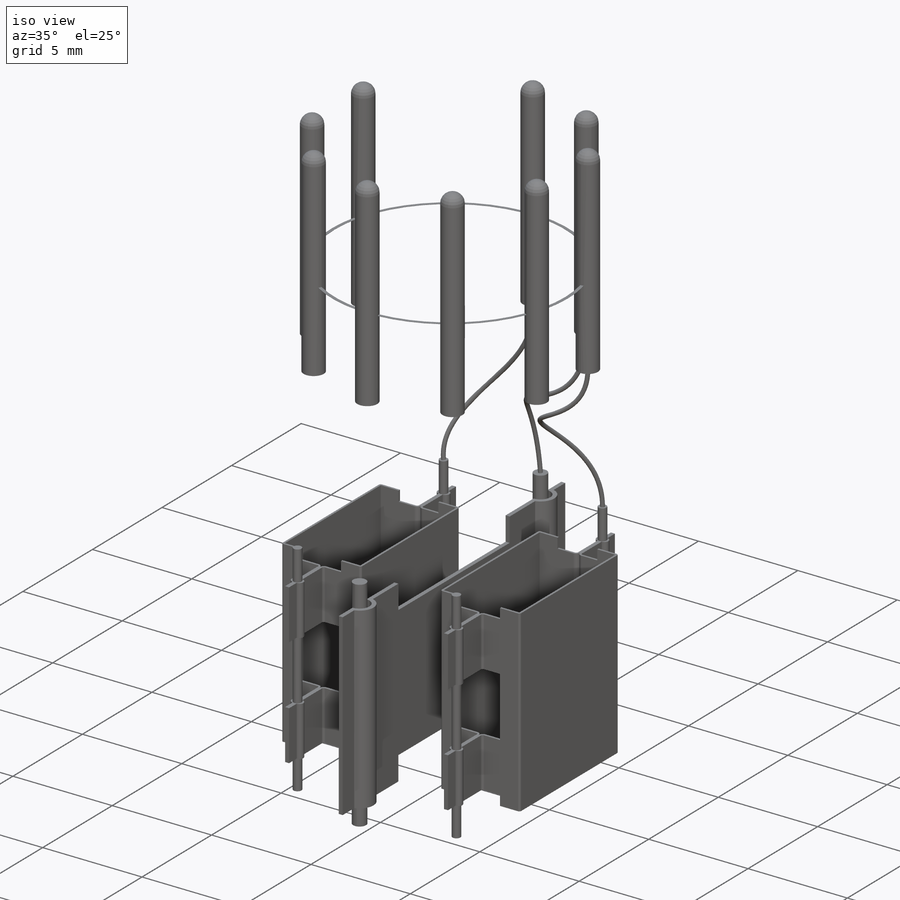
[diagram: iso view]
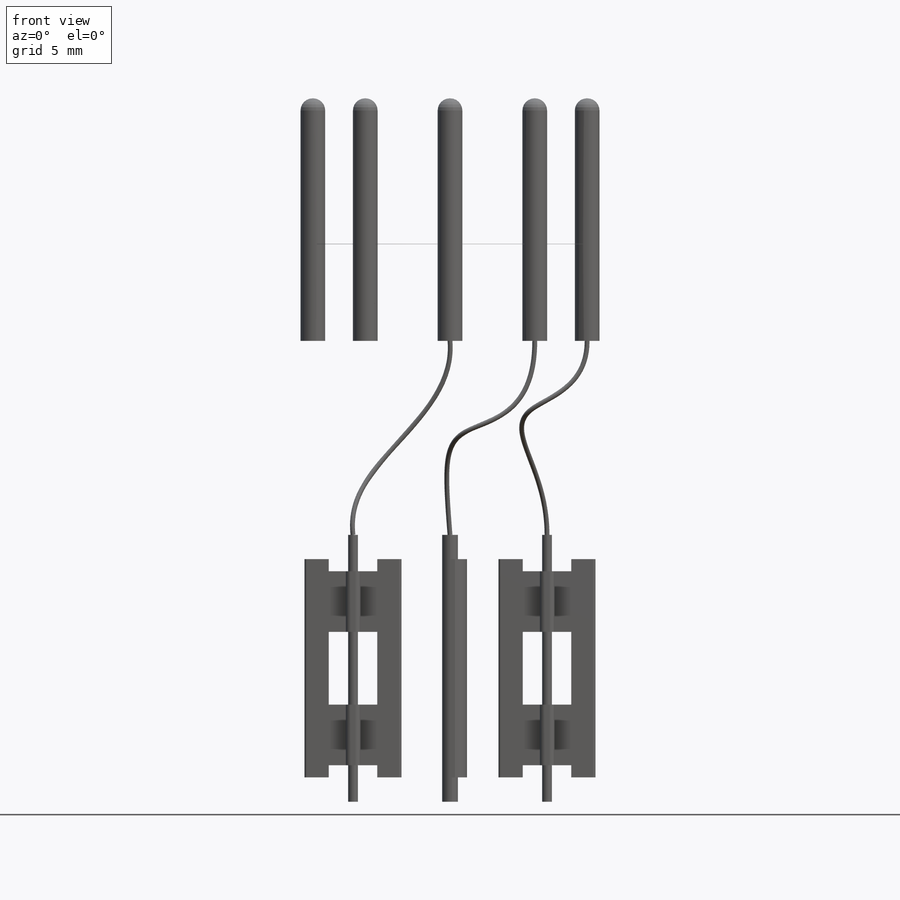
[diagram: front view]
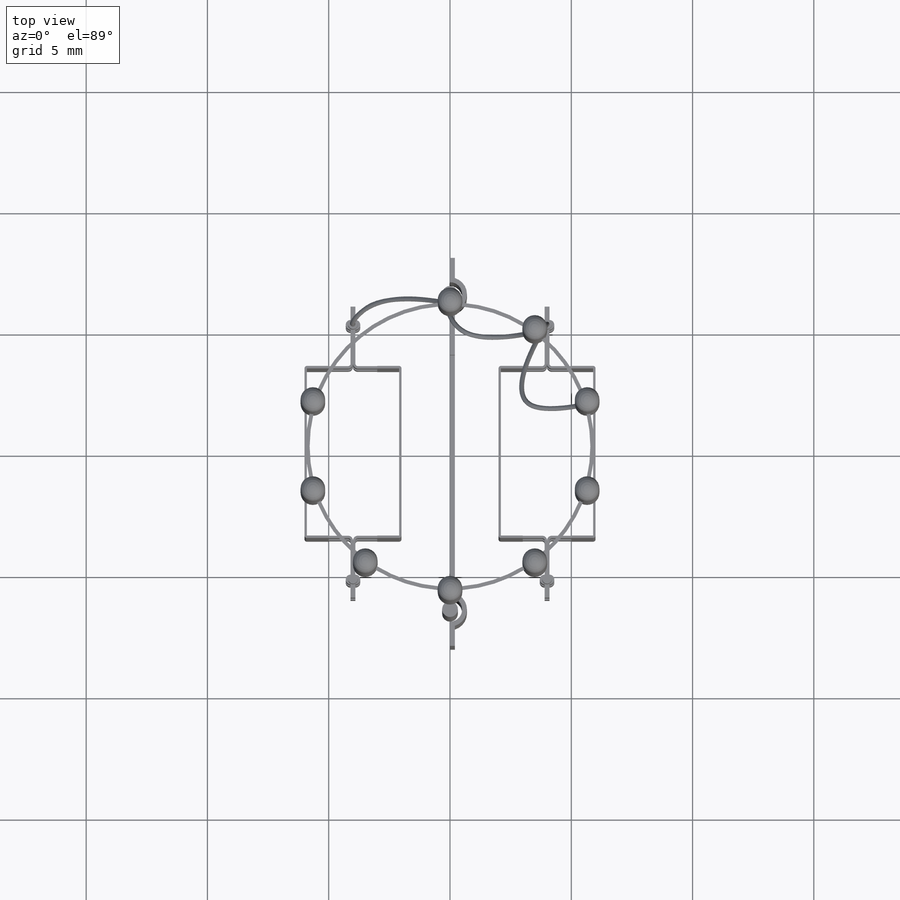
[diagram: top view]
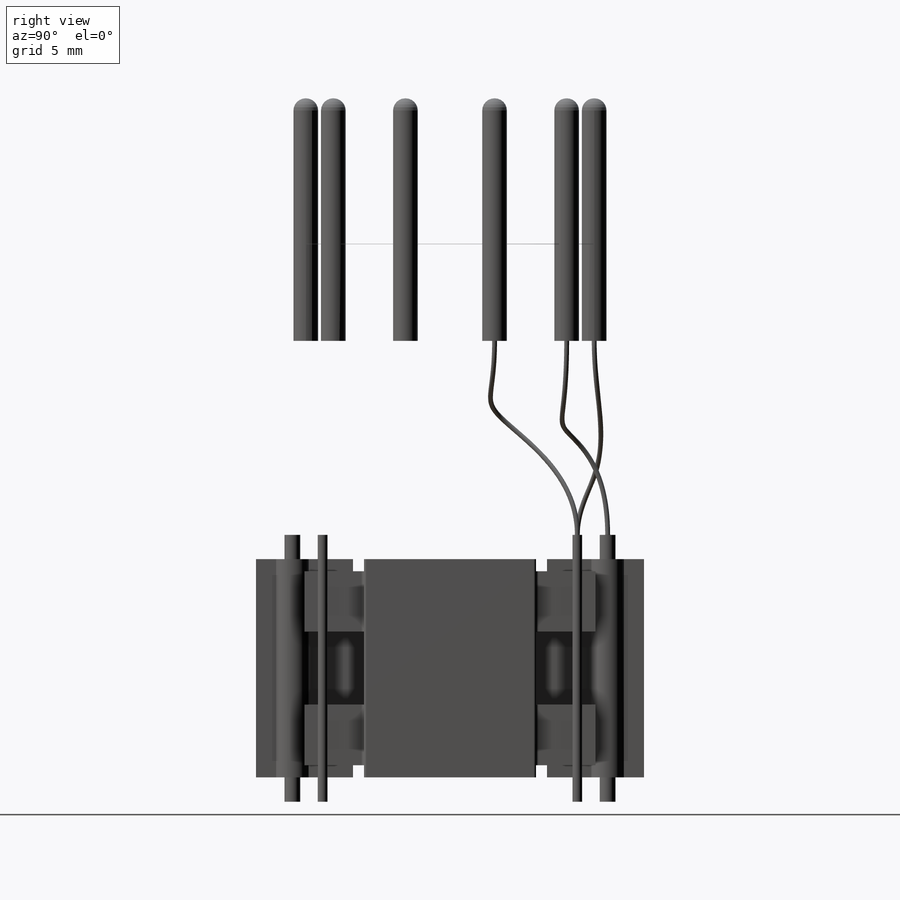
[diagram: right view]
SOLIDWORKS PART (.sldprt)
format: sldprt  version: not decoded by parser v0  size: 1,730,048 bytes
history: native  units: mm
features: sketch x25, sweep x9, extrude x4, plane x4, cut_extrude x2, material x1, fillet x1, mirror x1 (+12 scaffold rows collapsed)
feature tree (59):
  scaffold x12  (default folders/planes/origin — collapsed)
  material  "Plain Carbon Steel"
  sketch  "Sketch1"  dims[D1=11.89mm D2=1.016mm D4=36.0deg D3=9.0]
  extrude  "Boss-Extrude1"  Depth=6mm
  plane  "Plane1"
  sketch  "Sketch2"
  extrude  "Boss-Extrude2"  Depth=0.01mm
  fillet  "Fillet3"  Radius=0.5mm
  plane  "Plane2"  Offset=13mm
  sketch  "Sketch3"  dims[c1.D1=0.5mm c1.D2=8.0mm c1.D3=1.0mm c1.D4=8.0mm c2.D1=9.0mm c2.D5=0.2mm c2.D6=1.0mm c2.D7=0.05mm]
  sketch  "Sketch6"  dims[D1=8.0mm D2=1.2mm]
  cut_extrude  "Cut-Extrude2"  Depth=0.5mm
  sketch  "Sketch4"  dims[D4=0.2mm D6=0.1mm D1=6.0mm D2=2.0mm D3=0.2mm D5=0.75mm D7=0.1mm]
  extrude  "Extrude-Thin2"  Depth=9mm
  sketch  "Sketch5"  dims[D1=3.0mm D2=2.0mm D3=0.5mm D4=2.0mm D5=1.5mm D6=1.0mm D7=1.2mm]
  cut_extrude  "Cut-Extrude1"  Depth=7mm
  plane  "Plane3"
  mirror  "Mirror1"
  plane  "Plane4"  Offset=4.5mm
  sketch  "Sketch7"  dims[D1=~0.144111mm]
  extrude  "Boss-Extrude3"  Depth=5.5mm
  sketch  "Sketch10"  dims[D1=~0.098678mm]
  sketch  "3DSketch2"
  sweep  "Sweep5"
  sketch  "Sketch11"  dims[D1=~0.162432mm]
  sketch  "3DSketch3"
  sweep  "Sweep6"
  sketch  "Sketch12"  dims[D1=~0.227996mm]
  sketch  "3DSketch4"
  sweep  "Sweep7"
  sketch  "Sketch13"  dims[D1=~0.202507mm]
  sketch  "3DSketch5"
  sweep  "Sweep8"
  sketch  "Sketch14"  dims[D1=~0.197173mm]
  sketch  "3DSketch6"
  sweep  "Sweep9"
  sketch  "Sketch15"  dims[D1=~0.142515mm]
  sketch  "3DSketch7"
  sweep  "Sweep10"
  sketch  "Sketch16"  dims[D1=~0.186643mm]
  sketch  "3DSketch8"
  sweep  "Sweep11"
  sketch  "Sketch17"  dims[D1=~0.123387mm]
  sketch  "3DSketch9"
  sweep  "Sweep12"
  sketch  "Sketch18"  dims[D1=~0.112072mm]
  sketch  "3DSketch10"
  sweep  "Sweep13"
decode coverage: 22 of 42 modeling features carry decoded parameters
note: ~ marks probable driven/reference dimensions
summary: profile_refs inferred from adjacent sketches, not decoded
note: suppression state not decoded; provenance and decode notes live in map.json
